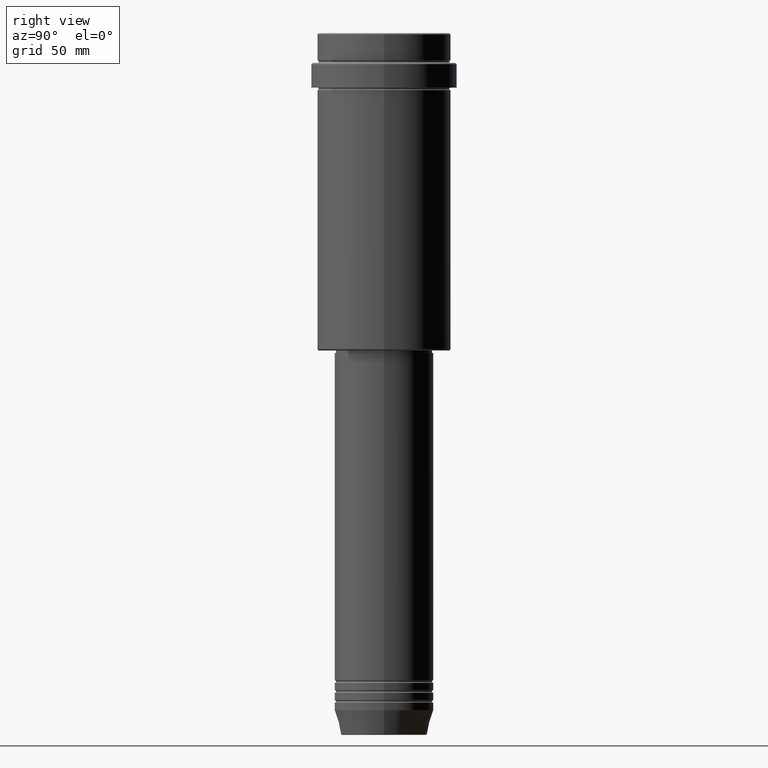
[diagram: clean part render]
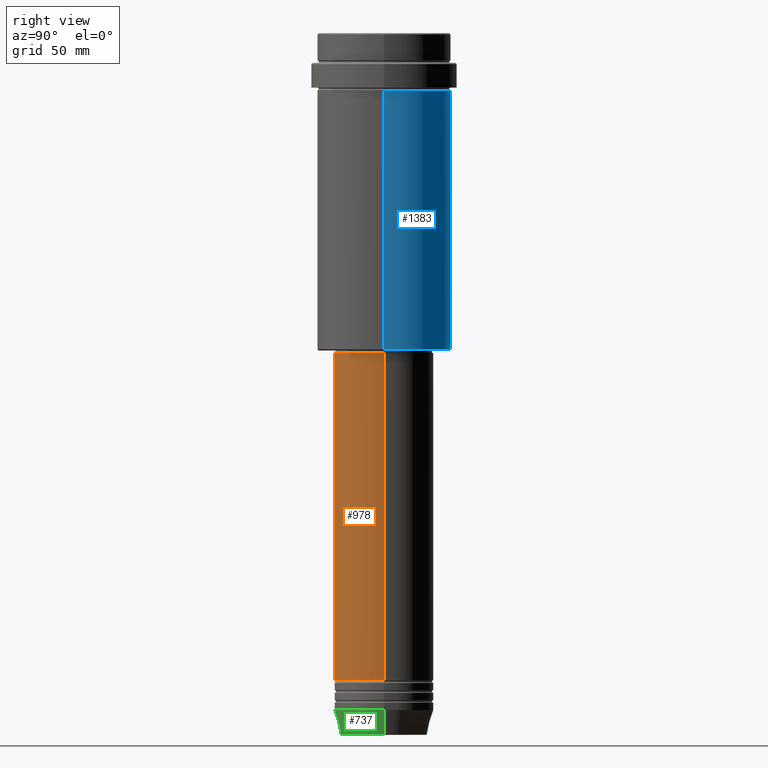
[diagram: same view with three faces highlighted in distinct colors, each labeled with its STEP entity id]
A machine part, right view with three faces highlighted in distinct colors.
Their STEP definitions:

[orange] entity #978 — the highlighted cylindrical surface (partial cylindrical patch) has radius 20 mm, axis along (-0, -0, 1).
#24 = AXIS2_PLACEMENT_3D ( 'NONE', #1174, #322, #748 ) ;
#47 = CARTESIAN_POINT ( 'NONE',  ( -20.00000000000000000, 2.449293598294706513E-15, -129.0000000000000284 ) ) ;
#50 = DIRECTION ( 'NONE',  ( -0.000000000000000000, -0.000000000000000000, 1.000000000000000000 ) ) ;
#67 = DIRECTION ( 'NONE',  ( 1.000000000000000000, 0.000000000000000000, 0.000000000000000000 ) ) ;
#157 = CARTESIAN_POINT ( 'NONE',  ( -20.00000000000000000, 2.449293598294706513E-15, 0.000000000000000000 ) ) ;
#191 = VECTOR ( 'NONE', #50, 1000.000000000000000 ) ;
#230 = FACE_OUTER_BOUND ( 'NONE', #771, .T. ) ;
#285 = CARTESIAN_POINT ( 'NONE',  ( 0.000000000000000000, 0.000000000000000000, -129.0000000000000284 ) ) ;
#296 = CARTESIAN_POINT ( 'NONE',  ( 0.000000000000000000, 0.000000000000000000, 0.000000000000000000 ) ) ;
#322 = DIRECTION ( 'NONE',  ( -0.000000000000000000, -0.000000000000000000, 1.000000000000000000 ) ) ;
#368 = LINE ( 'NONE', #925, #710 ) ;
#375 = CARTESIAN_POINT ( 'NONE',  ( -20.00000000000000000, 2.449293598294706513E-15, -260.9999999999998863 ) ) ;
#408 = AXIS2_PLACEMENT_3D ( 'NONE', #285, #1043, #67 ) ;
#412 = CARTESIAN_POINT ( 'NONE',  ( 20.00000000000000000, 0.000000000000000000, -260.9999999999998863 ) ) ;
#417 = EDGE_CURVE ( 'NONE', #583, #1298, #636, .T. ) ;
#553 = AXIS2_PLACEMENT_3D ( 'NONE', #296, #739, #1065 ) ;
#583 = VERTEX_POINT ( 'NONE', #375 ) ;
#595 = DIRECTION ( 'NONE',  ( -0.000000000000000000, -0.000000000000000000, 1.000000000000000000 ) ) ;
#636 = CIRCLE ( 'NONE', #24, 20.00000000000000000 ) ;
#680 = CYLINDRICAL_SURFACE ( 'NONE', #553, 20.00000000000000000 ) ;
#710 = VECTOR ( 'NONE', #595, 1000.000000000000000 ) ;
#739 = DIRECTION ( 'NONE',  ( -0.000000000000000000, -0.000000000000000000, 1.000000000000000000 ) ) ;
#748 = DIRECTION ( 'NONE',  ( 1.000000000000000000, 0.000000000000000000, 0.000000000000000000 ) ) ;
#771 = EDGE_LOOP ( 'NONE', ( #1282, #1076, #1167, #1118 ) ) ;
#887 = EDGE_CURVE ( 'NONE', #1144, #1079, #1026, .T. ) ;
#923 = EDGE_CURVE ( 'NONE', #583, #1144, #1033, .T. ) ;
#925 = CARTESIAN_POINT ( 'NONE',  ( 20.00000000000000000, 0.000000000000000000, 0.000000000000000000 ) ) ;
#978 = ADVANCED_FACE ( 'NONE', ( #230 ), #680, .T. ) ;
#1026 = CIRCLE ( 'NONE', #408, 20.00000000000000000 ) ;
#1033 = LINE ( 'NONE', #157, #191 ) ;
#1043 = DIRECTION ( 'NONE',  ( -0.000000000000000000, -0.000000000000000000, 1.000000000000000000 ) ) ;
#1065 = DIRECTION ( 'NONE',  ( 1.000000000000000000, 0.000000000000000000, 0.000000000000000000 ) ) ;
#1076 = ORIENTED_EDGE ( 'NONE', *, *, #417, .T. ) ;
#1079 = VERTEX_POINT ( 'NONE', #1292 ) ;
#1102 = EDGE_CURVE ( 'NONE', #1298, #1079, #368, .T. ) ;
#1118 = ORIENTED_EDGE ( 'NONE', *, *, #887, .F. ) ;
#1144 = VERTEX_POINT ( 'NONE', #47 ) ;
#1167 = ORIENTED_EDGE ( 'NONE', *, *, #1102, .T. ) ;
#1174 = CARTESIAN_POINT ( 'NONE',  ( 0.000000000000000000, 0.000000000000000000, -260.9999999999998863 ) ) ;
#1282 = ORIENTED_EDGE ( 'NONE', *, *, #923, .F. ) ;
#1292 = CARTESIAN_POINT ( 'NONE',  ( 20.00000000000000000, 0.000000000000000000, -129.0000000000000284 ) ) ;
#1298 = VERTEX_POINT ( 'NONE', #412 ) ;

[blue] entity #1383 — the highlighted cylindrical surface (partial cylindrical patch) has radius 27 mm, axis along (-0, -0, 1).
#29 = VECTOR ( 'NONE', #144, 1000.000000000000000 ) ;
#60 = AXIS2_PLACEMENT_3D ( 'NONE', #484, #546, #688 ) ;
#72 = CARTESIAN_POINT ( 'NONE',  ( -27.00000000000000355, 3.306546357697854128E-15, -23.00000000000001421 ) ) ;
#115 = ORIENTED_EDGE ( 'NONE', *, *, #597, .T. ) ;
#144 = DIRECTION ( 'NONE',  ( -0.000000000000000000, -0.000000000000000000, 1.000000000000000000 ) ) ;
#170 = EDGE_CURVE ( 'NONE', #1385, #852, #402, .T. ) ;
#199 = CARTESIAN_POINT ( 'NONE',  ( 27.00000000000000355, 0.000000000000000000, -23.00000000000001421 ) ) ;
#204 = FACE_OUTER_BOUND ( 'NONE', #1042, .T. ) ;
#209 = VERTEX_POINT ( 'NONE', #316 ) ;
#267 = CARTESIAN_POINT ( 'NONE',  ( 27.00000000000000355, 0.000000000000000000, 0.000000000000000000 ) ) ;
#316 = CARTESIAN_POINT ( 'NONE',  ( -27.00000000000000355, 3.306546357697854128E-15, -127.5000000000000568 ) ) ;
#325 = DIRECTION ( 'NONE',  ( 1.000000000000000000, 0.000000000000000000, 0.000000000000000000 ) ) ;
#335 = LINE ( 'NONE', #693, #1236 ) ;
#354 = LINE ( 'NONE', #267, #29 ) ;
#378 = DIRECTION ( 'NONE',  ( -0.000000000000000000, -0.000000000000000000, 1.000000000000000000 ) ) ;
#402 = CIRCLE ( 'NONE', #1004, 27.00000000000000355 ) ;
#405 = CARTESIAN_POINT ( 'NONE',  ( 27.00000000000000355, 0.000000000000000000, -127.5000000000000568 ) ) ;
#484 = CARTESIAN_POINT ( 'NONE',  ( 0.000000000000000000, 0.000000000000000000, -127.5000000000000568 ) ) ;
#546 = DIRECTION ( 'NONE',  ( -0.000000000000000000, -0.000000000000000000, 1.000000000000000000 ) ) ;
#563 = CARTESIAN_POINT ( 'NONE',  ( 0.000000000000000000, 0.000000000000000000, -23.00000000000001421 ) ) ;
#597 = EDGE_CURVE ( 'NONE', #1014, #209, #841, .T. ) ;
#637 = EDGE_CURVE ( 'NONE', #209, #852, #335, .T. ) ;
#688 = DIRECTION ( 'NONE',  ( -1.000000000000000000, 0.000000000000000000, 0.000000000000000000 ) ) ;
#693 = CARTESIAN_POINT ( 'NONE',  ( -27.00000000000000355, 3.306546357697854128E-15, 0.000000000000000000 ) ) ;
#785 = ORIENTED_EDGE ( 'NONE', *, *, #1152, .F. ) ;
#841 = CIRCLE ( 'NONE', #60, 27.00000000000000355 ) ;
#852 = VERTEX_POINT ( 'NONE', #72 ) ;
#898 = DIRECTION ( 'NONE',  ( -0.000000000000000000, -0.000000000000000000, 1.000000000000000000 ) ) ;
#1001 = CARTESIAN_POINT ( 'NONE',  ( 0.000000000000000000, 0.000000000000000000, 0.000000000000000000 ) ) ;
#1004 = AXIS2_PLACEMENT_3D ( 'NONE', #563, #1209, #325 ) ;
#1014 = VERTEX_POINT ( 'NONE', #405 ) ;
#1042 = EDGE_LOOP ( 'NONE', ( #115, #1373, #1365, #785 ) ) ;
#1089 = CYLINDRICAL_SURFACE ( 'NONE', #1376, 27.00000000000000355 ) ;
#1152 = EDGE_CURVE ( 'NONE', #1014, #1385, #354, .T. ) ;
#1209 = DIRECTION ( 'NONE',  ( -0.000000000000000000, -0.000000000000000000, 1.000000000000000000 ) ) ;
#1236 = VECTOR ( 'NONE', #378, 1000.000000000000000 ) ;
#1339 = DIRECTION ( 'NONE',  ( 1.000000000000000000, 0.000000000000000000, 0.000000000000000000 ) ) ;
#1365 = ORIENTED_EDGE ( 'NONE', *, *, #170, .F. ) ;
#1373 = ORIENTED_EDGE ( 'NONE', *, *, #637, .T. ) ;
#1376 = AXIS2_PLACEMENT_3D ( 'NONE', #1001, #898, #1339 ) ;
#1383 = ADVANCED_FACE ( 'NONE', ( #204 ), #1089, .T. ) ;
#1385 = VERTEX_POINT ( 'NONE', #199 ) ;

[green] entity #737 — the highlighted conical surface has half-angle 15 deg.
#91 = VERTEX_POINT ( 'NONE', #930 ) ;
#97 = ORIENTED_EDGE ( 'NONE', *, *, #1407, .T. ) ;
#102 = VECTOR ( 'NONE', #784, 1000.000000000000114 ) ;
#139 = LINE ( 'NONE', #449, #102 ) ;
#162 = EDGE_CURVE ( 'NONE', #262, #444, #258, .T. ) ;
#179 = CARTESIAN_POINT ( 'NONE',  ( 0.000000000000000000, 0.000000000000000000, -273.0000000000000000 ) ) ;
#195 = DIRECTION ( 'NONE',  ( -0.000000000000000000, -0.000000000000000000, 1.000000000000000000 ) ) ;
#227 = ORIENTED_EDGE ( 'NONE', *, *, #1221, .F. ) ;
#258 = CIRCLE ( 'NONE', #1412, 20.00000000000000000 ) ;
#262 = VERTEX_POINT ( 'NONE', #679 ) ;
#284 = DIRECTION ( 'NONE',  ( 1.000000000000000000, 0.000000000000000000, 0.000000000000000000 ) ) ;
#312 = CARTESIAN_POINT ( 'NONE',  ( 0.000000000000000000, 0.000000000000000000, -282.6294095225512706 ) ) ;
#349 = DIRECTION ( 'NONE',  ( 1.000000000000000000, 0.000000000000000000, 0.000000000000000000 ) ) ;
#359 = CARTESIAN_POINT ( 'NONE',  ( -17.41980749484382684, 2.291302373663531915E-15, -282.6294095225512706 ) ) ;
#397 = DIRECTION ( 'NONE',  ( -0.000000000000000000, -0.000000000000000000, 1.000000000000000000 ) ) ;
#425 = DIRECTION ( 'NONE',  ( -0.000000000000000000, -0.000000000000000000, 1.000000000000000000 ) ) ;
#444 = VERTEX_POINT ( 'NONE', #534 ) ;
#449 = CARTESIAN_POINT ( 'NONE',  ( 20.00000000000000000, 0.000000000000000000, -273.0000000000000000 ) ) ;
#492 = FACE_OUTER_BOUND ( 'NONE', #1000, .T. ) ;
#501 = VECTOR ( 'NONE', #1062, 1000.000000000000114 ) ;
#516 = CARTESIAN_POINT ( 'NONE',  ( -20.00000000000000000, 2.449293598294706513E-15, -273.0000000000000000 ) ) ;
#534 = CARTESIAN_POINT ( 'NONE',  ( 20.00000000000000000, 0.000000000000000000, -273.0000000000000000 ) ) ;
#663 = CONICAL_SURFACE ( 'NONE', #918, 20.00000000000000000, 0.2617993877991499074 ) ;
#671 = ORIENTED_EDGE ( 'NONE', *, *, #162, .F. ) ;
#679 = CARTESIAN_POINT ( 'NONE',  ( -20.00000000000000000, 2.449293598294706513E-15, -273.0000000000000000 ) ) ;
#737 = ADVANCED_FACE ( 'NONE', ( #492 ), #663, .T. ) ;
#762 = EDGE_CURVE ( 'NONE', #91, #444, #139, .T. ) ;
#784 = DIRECTION ( 'NONE',  ( 0.2588190451025211836, 0.000000000000000000, 0.9659258262890680902 ) ) ;
#918 = AXIS2_PLACEMENT_3D ( 'NONE', #179, #397, #284 ) ;
#930 = CARTESIAN_POINT ( 'NONE',  ( 17.41980749484382684, 0.000000000000000000, -282.6294095225512706 ) ) ;
#950 = LINE ( 'NONE', #516, #501 ) ;
#973 = DIRECTION ( 'NONE',  ( 1.000000000000000000, 0.000000000000000000, 0.000000000000000000 ) ) ;
#979 = CARTESIAN_POINT ( 'NONE',  ( 0.000000000000000000, 0.000000000000000000, -273.0000000000000000 ) ) ;
#988 = AXIS2_PLACEMENT_3D ( 'NONE', #312, #425, #349 ) ;
#1000 = EDGE_LOOP ( 'NONE', ( #227, #97, #1271, #671 ) ) ;
#1062 = DIRECTION ( 'NONE',  ( -0.2588190451025211836, 3.169619151431770488E-17, 0.9659258262890680902 ) ) ;
#1121 = CIRCLE ( 'NONE', #988, 17.41980749484382684 ) ;
#1195 = VERTEX_POINT ( 'NONE', #359 ) ;
#1221 = EDGE_CURVE ( 'NONE', #1195, #262, #950, .T. ) ;
#1271 = ORIENTED_EDGE ( 'NONE', *, *, #762, .T. ) ;
#1407 = EDGE_CURVE ( 'NONE', #1195, #91, #1121, .T. ) ;
#1412 = AXIS2_PLACEMENT_3D ( 'NONE', #979, #195, #973 ) ;